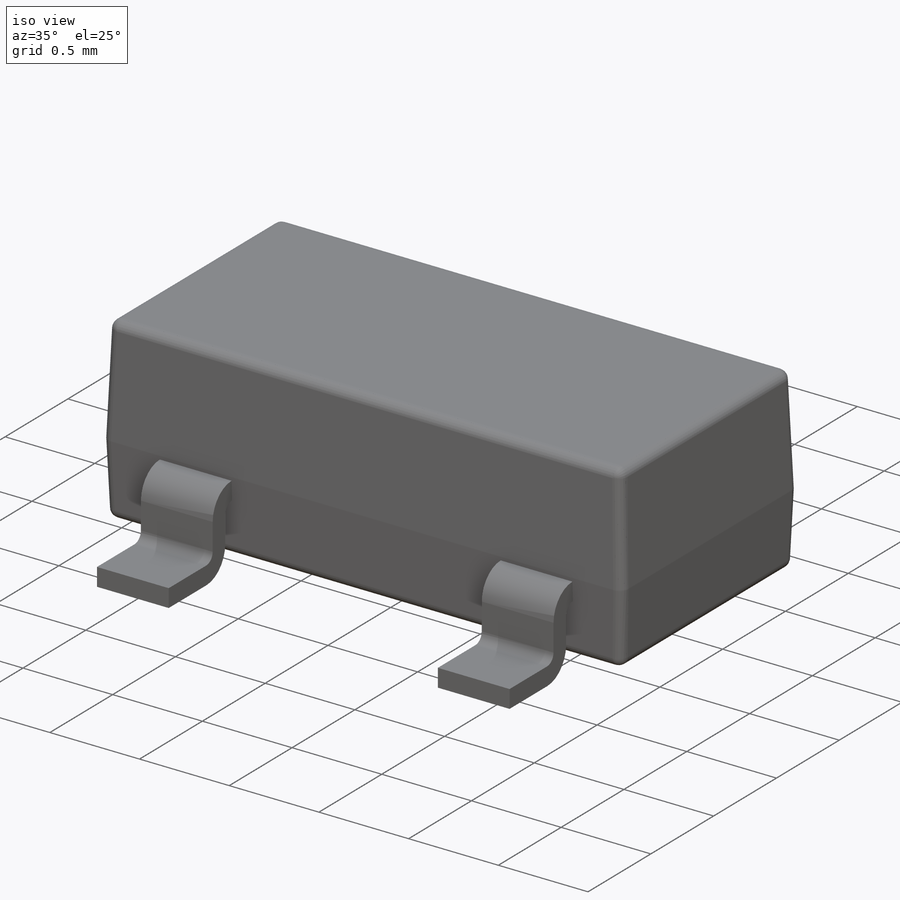
[diagram: iso view]
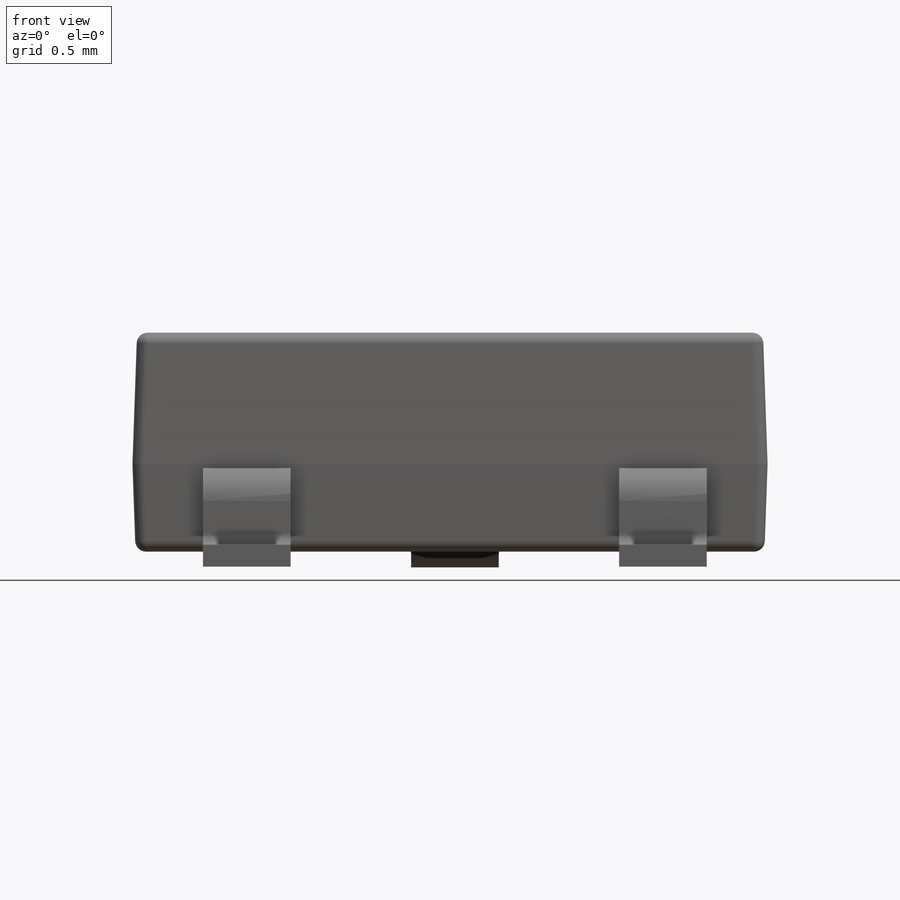
[diagram: front view]
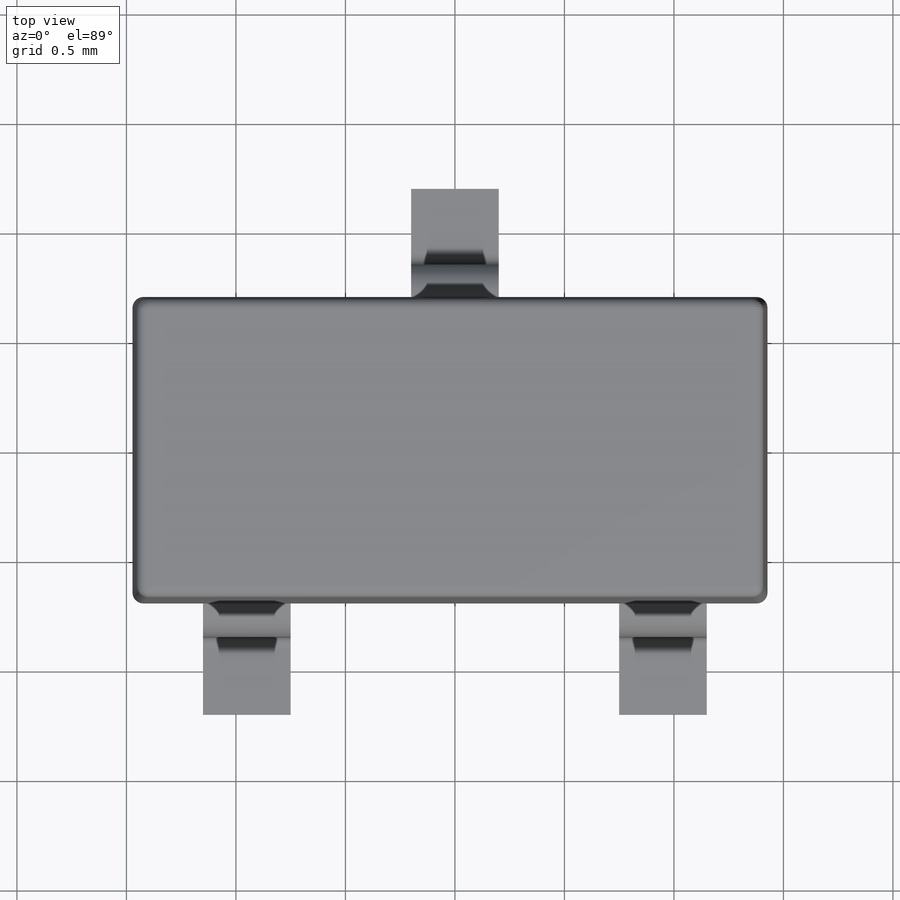
[diagram: top view]
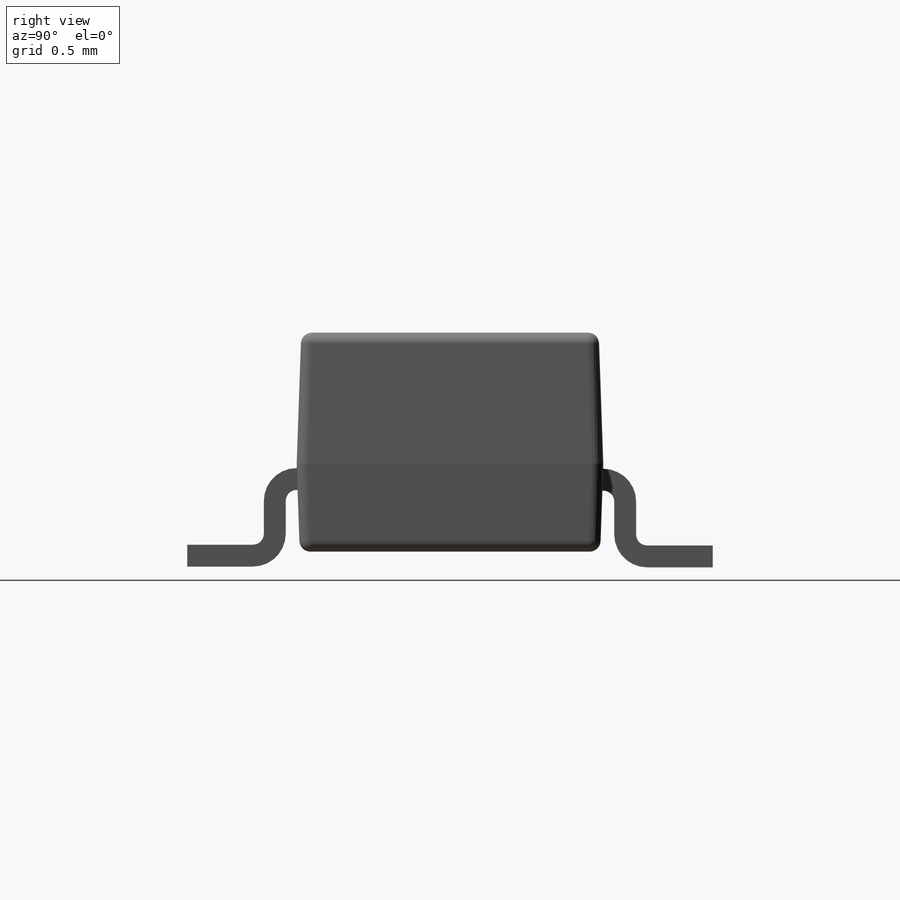
[diagram: right view]
SOLIDWORKS PART (.sldprt)
format: sldprt  version: not decoded by parser v0  size: 481,280 bytes
history: native  units: mm
features: sketch x5, sweep x2, material x1, extrude x1, fillet x1, plane x1, pattern_linear x1 (+12 scaffold rows collapsed)
feature tree (24):
  scaffold x12  (default folders/planes/origin — collapsed)
  material  "Material <not specified>"
  sketch  "Sketch1"  dims[c1.D1=1.4mm c1.D2=2.9mm c1.D3=1.45mm c2.D1=2.9mm c2.D2=1.4mm c2.D3=1.4mm]
  extrude  "Extrude1"  Depth=0.6mm
  fillet  "Fillet1"  Radius=0.05mm
  sketch  "Sketch2"  dims[D5=0.1mm D1=0.4mm D2=1.2mm D3=0.07mm D4=0.35mm]
  sketch  "Sketch4"  dims[D1=0.4mm D2=0.1mm D3=0.2mm D4=0.05mm]
  sweep  "Sweep2"
  plane  "Plane1"  Offset=0.95mm
  sketch  "Sketch5"  dims[D5=0.1mm D1=0.8mm D2=0.4mm D3=0.35mm D4=0.07mm]
  sketch  "Sketch6"  dims[D1=0.4mm D2=0.1mm D3=0.2mm D4=0.05mm]
  sweep  "Sweep3"
  pattern_linear  "LPattern1"  Count1=2 Count2=1 Spacing1=1.9mm Spacing2=50mm
decode coverage: 8 of 10 modeling features carry decoded parameters
note: suppression state not decoded; provenance and decode notes live in map.json
